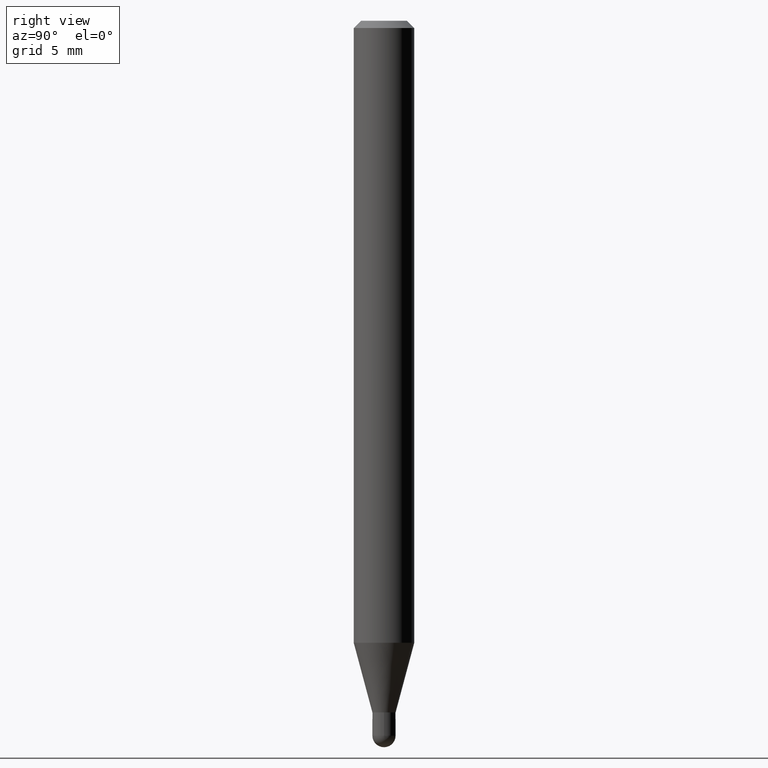
[diagram: clean part render]
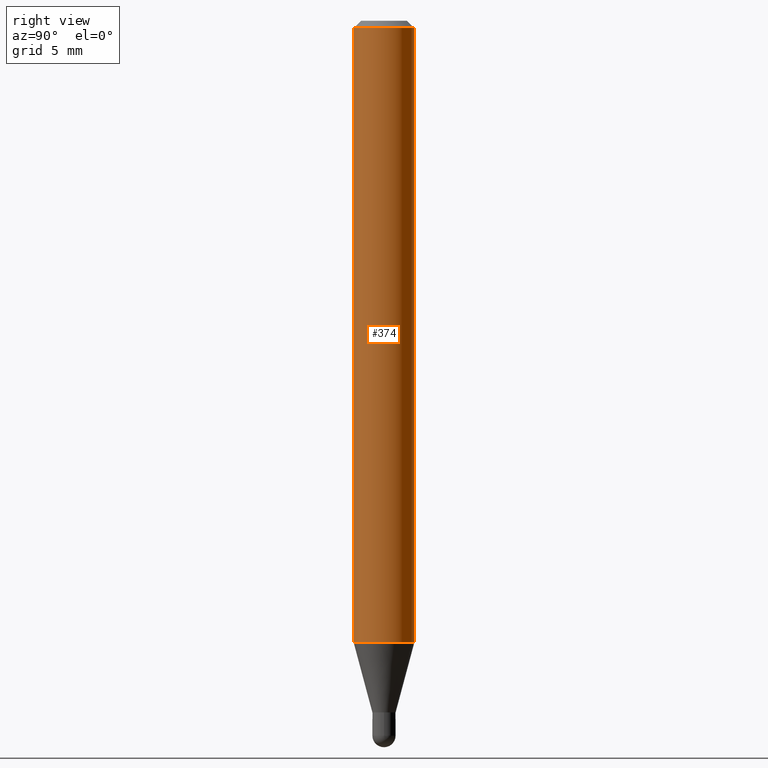
[diagram: same view with one face highlighted and labeled with its STEP entity id]
A machine part, right view. The second image highlights one B-rep face of the part: STEP entity #374.
In plain terms, the highlighted cylindrical surface (edge-blend (fillet) strip) has radius 1.5875 mm, axis along (-0, 0, 1).
Its self-contained STEP definition (entity closure, byte-faithful):
#2 = CIRCLE ( 'NONE', #293, 0.06250000000000000000 ) ;
#5 = DIRECTION ( 'NONE',  ( -2.445477922640170503E-29, 3.491468283560659998E-15, 1.000000000000000000 ) ) ;
#8 = CARTESIAN_POINT ( 'NONE',  ( -4.364351673553916201E-16, -0.06250000000000000000, 2.182167677225412499E-16 ) ) ;
#15 = VECTOR ( 'NONE', #5, 39.37007874015748143 ) ;
#20 = DIRECTION ( 'NONE',  ( -2.445477922640170503E-29, 3.491468283560659998E-15, 1.000000000000000000 ) ) ;
#28 = DIRECTION ( 'NONE',  ( -6.982962677686265922E-15, -1.000000000000000000, 3.483106191921935554E-15 ) ) ;
#29 = AXIS2_PLACEMENT_3D ( 'NONE', #258, #414, #55 ) ;
#41 = FACE_OUTER_BOUND ( 'NONE', #397, .T. ) ;
#49 = LINE ( 'NONE', #8, #15 ) ;
#55 = DIRECTION ( 'NONE',  ( -6.982962677686265922E-15, -1.000000000000000000, 4.370956789862821150E-15 ) ) ;
#67 = CARTESIAN_POINT ( 'NONE',  ( 4.440892098500625669E-16, 0.06250000000000000000, -2.182167677225412499E-16 ) ) ;
#76 = EDGE_CURVE ( 'NONE', #403, #443, #189, .T. ) ;
#108 = LINE ( 'NONE', #67, #384 ) ;
#115 = ORIENTED_EDGE ( 'NONE', *, *, #147, .T. ) ;
#118 = ORIENTED_EDGE ( 'NONE', *, *, #76, .T. ) ;
#123 = CARTESIAN_POINT ( 'NONE',  ( -4.364351673553604601E-16, -0.06250000000000449640, -1.284316043908603877 ) ) ;
#125 = EDGE_CURVE ( 'NONE', #317, #265, #2, .T. ) ;
#141 = CARTESIAN_POINT ( 'NONE',  ( 3.668216883960272272E-31, -5.237202425341013244E-17, -0.01500000000000006710 ) ) ;
#147 = EDGE_CURVE ( 'NONE', #443, #265, #108, .T. ) ;
#175 = CARTESIAN_POINT ( 'NONE',  ( 4.440892098500937762E-16, 0.06249999999999550360, -1.284316043908604321 ) ) ;
#189 = CIRCLE ( 'NONE', #29, 0.06250000000000000000 ) ;
#199 = DIRECTION ( 'NONE',  ( -2.445477922640170783E-29, 3.491468283560660393E-15, 1.000000000000000000 ) ) ;
#258 = CARTESIAN_POINT ( 'NONE',  ( 3.140766531071055068E-29, -4.484148733374991041E-15, -1.284316043908604099 ) ) ;
#265 = VERTEX_POINT ( 'NONE', #502 ) ;
#272 = CARTESIAN_POINT ( 'NONE',  ( 0.000000000000000000, 0.000000000000000000, 0.000000000000000000 ) ) ;
#293 = AXIS2_PLACEMENT_3D ( 'NONE', #141, #491, #28 ) ;
#317 = VERTEX_POINT ( 'NONE', #430 ) ;
#372 = ORIENTED_EDGE ( 'NONE', *, *, #496, .F. ) ;
#374 = ADVANCED_FACE ( 'NONE', ( #41 ), #469, .T. ) ;
#384 = VECTOR ( 'NONE', #20, 39.37007874015748143 ) ;
#397 = EDGE_LOOP ( 'NONE', ( #118, #115, #468, #372 ) ) ;
#403 = VERTEX_POINT ( 'NONE', #123 ) ;
#405 = AXIS2_PLACEMENT_3D ( 'NONE', #272, #199, #432 ) ;
#414 = DIRECTION ( 'NONE',  ( -2.445477922640170783E-29, 3.491468283560660393E-15, 1.000000000000000000 ) ) ;
#430 = CARTESIAN_POINT ( 'NONE',  ( -4.364351673553912750E-16, -0.06250000000000005551, -0.01499999999999984852 ) ) ;
#432 = DIRECTION ( 'NONE',  ( -6.982962677686265922E-15, -1.000000000000000000, 3.491468283560659998E-15 ) ) ;
#443 = VERTEX_POINT ( 'NONE', #175 ) ;
#468 = ORIENTED_EDGE ( 'NONE', *, *, #125, .F. ) ;
#469 = CYLINDRICAL_SURFACE ( 'NONE', #405, 0.06250000000000000000 ) ;
#491 = DIRECTION ( 'NONE',  ( -2.445477922640170783E-29, 3.491468283560660393E-15, 1.000000000000000000 ) ) ;
#496 = EDGE_CURVE ( 'NONE', #403, #317, #49, .T. ) ;
#502 = CARTESIAN_POINT ( 'NONE',  ( 4.440892098500941706E-16, 0.06249999999999995143, -0.01500000000000028394 ) ) ;